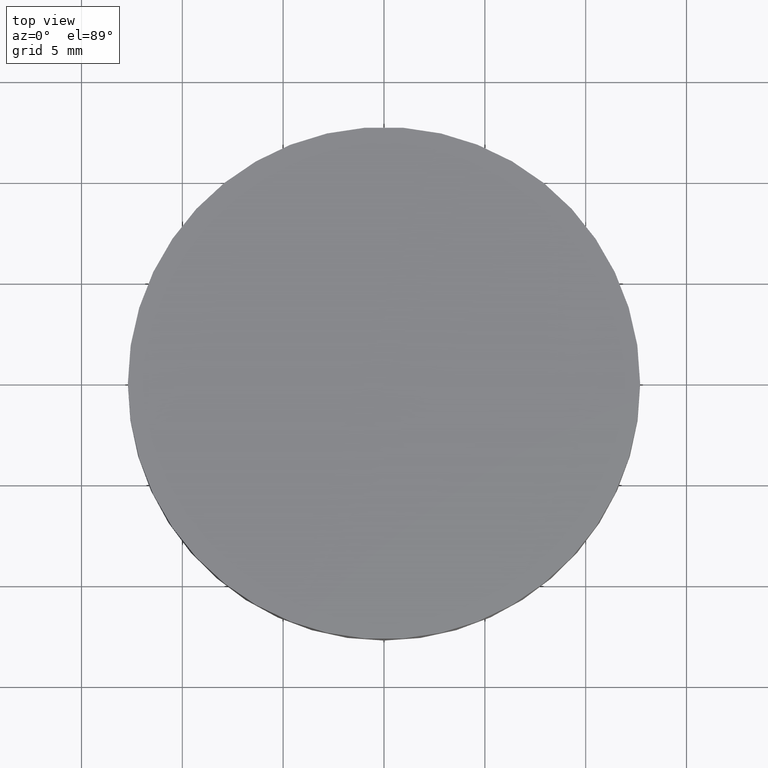
[diagram: clean part render]
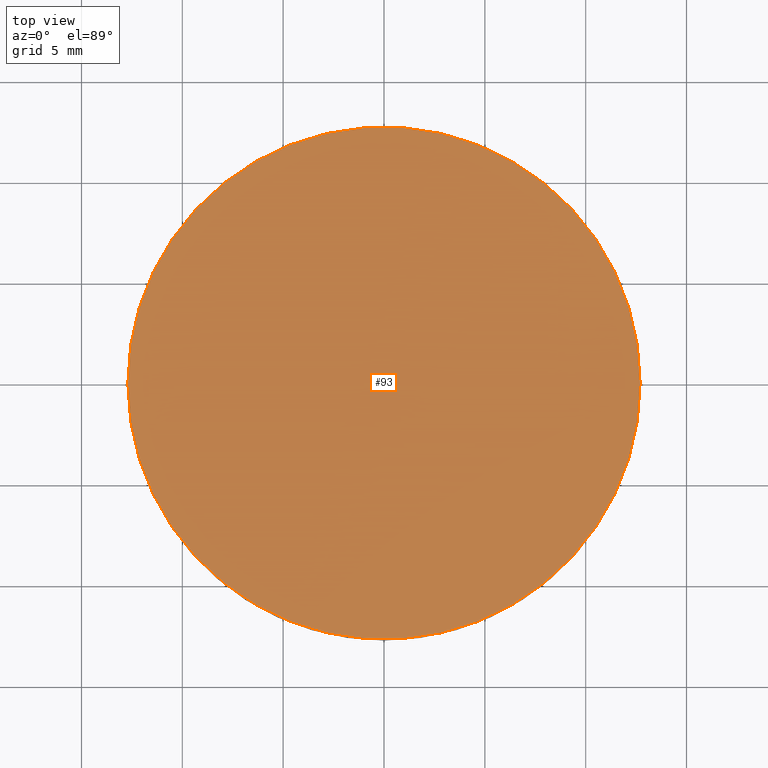
[diagram: same view with one face highlighted and labeled with its STEP entity id]
A machine part, top view. The second image highlights one B-rep face of the part: STEP entity #93.
In plain terms, the highlighted planar face has unit normal (0, 0, 1).
Its self-contained STEP definition (entity closure, byte-faithful):
#11 = DIRECTION ( 'NONE',  ( 1.000000000000000000, 0.000000000000000000, 0.000000000000000000 ) ) ;
#18 = DIRECTION ( 'NONE',  ( 0.000000000000000000, 0.000000000000000000, 1.000000000000000000 ) ) ;
#23 = CARTESIAN_POINT ( 'NONE',  ( 8.881784197001250351E-16, -8.881784197001250351E-16, 5.000000000000000000 ) ) ;
#48 = ORIENTED_EDGE ( 'NONE', *, *, #366, .F. ) ;
#75 = CARTESIAN_POINT ( 'NONE',  ( 8.881784197001250351E-16, -8.881784197001250351E-16, 5.000000000000000000 ) ) ;
#93 = ADVANCED_FACE ( 'NONE', ( #229 ), #102, .T. ) ;
#102 = PLANE ( 'NONE',  #343 ) ;
#135 = EDGE_LOOP ( 'NONE', ( #48, #287 ) ) ;
#163 = CIRCLE ( 'NONE', #219, 12.69999999999999929 ) ;
#170 = EDGE_CURVE ( 'NONE', #292, #337, #238, .T. ) ;
#200 = CARTESIAN_POINT ( 'NONE',  ( -12.69999999999999751, 6.671230152170134961E-16, 5.000000000000000000 ) ) ;
#219 = AXIS2_PLACEMENT_3D ( 'NONE', #23, #273, #307 ) ;
#229 = FACE_OUTER_BOUND ( 'NONE', #135, .T. ) ;
#238 = CIRCLE ( 'NONE', #305, 12.69999999999999929 ) ;
#239 = DIRECTION ( 'NONE',  ( -0.000000000000000000, -0.000000000000000000, -1.000000000000000000 ) ) ;
#273 = DIRECTION ( 'NONE',  ( -0.000000000000000000, -0.000000000000000000, -1.000000000000000000 ) ) ;
#287 = ORIENTED_EDGE ( 'NONE', *, *, #170, .F. ) ;
#292 = VERTEX_POINT ( 'NONE', #200 ) ;
#305 = AXIS2_PLACEMENT_3D ( 'NONE', #75, #239, #11 ) ;
#307 = DIRECTION ( 'NONE',  ( 1.000000000000000000, 0.000000000000000000, 0.000000000000000000 ) ) ;
#337 = VERTEX_POINT ( 'NONE', #370 ) ;
#343 = AXIS2_PLACEMENT_3D ( 'NONE', #396, #18, #367 ) ;
#366 = EDGE_CURVE ( 'NONE', #337, #292, #163, .T. ) ;
#367 = DIRECTION ( 'NONE',  ( 1.000000000000000000, 0.000000000000000000, -0.000000000000000000 ) ) ;
#370 = CARTESIAN_POINT ( 'NONE',  ( 12.70000000000000107, -8.881784197001250351E-16, 5.000000000000000000 ) ) ;
#396 = CARTESIAN_POINT ( 'NONE',  ( 0.000000000000000000, 26.11199999999999832, 5.000000000000000000 ) ) ;